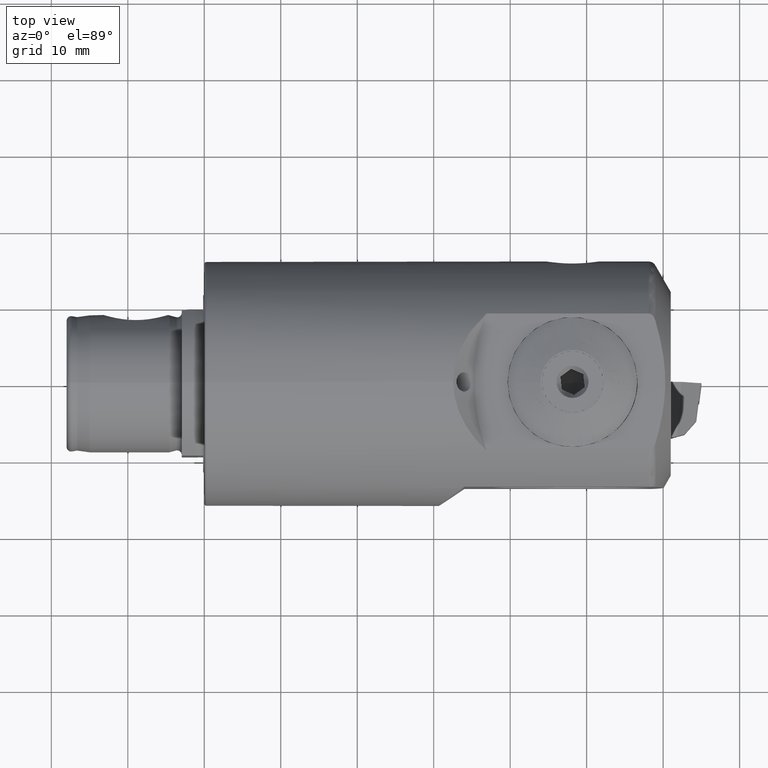
[diagram: clean part render]
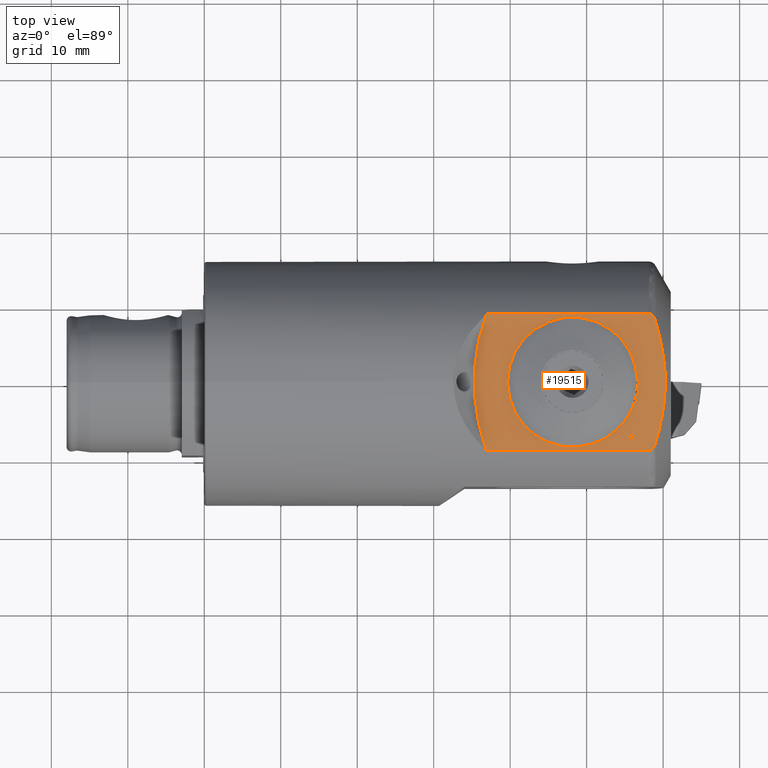
[diagram: same view with one face highlighted and labeled with its STEP entity id]
A machine part, top view. The second image highlights one B-rep face of the part: STEP entity #19515.
In plain terms, the highlighted planar face has unit normal (0, 0, 1).
Its self-contained STEP definition (entity closure, byte-faithful):
#205 = VERTEX_POINT ( 'NONE', #18856 ) ;
#305 = CARTESIAN_POINT ( 'NONE',  ( 56.57476505708877600, -1.128420902348066700, 13.24999999999999800 ) ) ;
#336 = EDGE_CURVE ( 'NONE', #26315, #14768, #8229, .T. ) ;
#570 = CARTESIAN_POINT ( 'NONE',  ( 58.97927405783630700, -8.042853971072718300, 13.25000000000000000 ) ) ;
#625 = ORIENTED_EDGE ( 'NONE', *, *, #7730, .T. ) ;
#1258 = CARTESIAN_POINT ( 'NONE',  ( 58.22063395707630900, -2.975706924846885500, 13.25000000000000000 ) ) ;
#1270 = VERTEX_POINT ( 'NONE', #15582 ) ;
#1315 = VERTEX_POINT ( 'NONE', #12637 ) ;
#1397 = ORIENTED_EDGE ( 'NONE', *, *, #22189, .F. ) ;
#1426 = EDGE_CURVE ( 'NONE', #26756, #25260, #10574, .T. ) ;
#1601 = ORIENTED_EDGE ( 'NONE', *, *, #23162, .F. ) ;
#1808 = CARTESIAN_POINT ( 'NONE',  ( 58.61355914048837000, 8.735098020652939600, 13.24999999999999800 ) ) ;
#2099 = CARTESIAN_POINT ( 'NONE',  ( 58.22063395707630900, -2.975706924846885500, 13.24999999998293500 ) ) ;
#2152 = CARTESIAN_POINT ( 'NONE',  ( 36.89585076262646600, -8.968695557326045200, 13.25000000000000200 ) ) ;
#2231 = VERTEX_POINT ( 'NONE', #305 ) ;
#2238 = ORIENTED_EDGE ( 'NONE', *, *, #25606, .F. ) ;
#2384 = VERTEX_POINT ( 'NONE', #21690 ) ;
#2434 = CARTESIAN_POINT ( 'NONE',  ( 59.69476924248552800, -5.425145935517456100, 13.25000000000000000 ) ) ;
#2494 = LINE ( 'NONE', #10470, #19454 ) ;
#2515 = EDGE_CURVE ( 'NONE', #32321, #26123, #28087, .T. ) ;
#2644 = CIRCLE ( 'NONE', #21643, 8.500000000000007100 ) ;
#2703 = FACE_OUTER_BOUND ( 'NONE', #26885, .T. ) ;
#2826 = LINE ( 'NONE', #8372, #8910 ) ;
#2888 = LINE ( 'NONE', #21917, #26833 ) ;
#3520 = VERTEX_POINT ( 'NONE', #14369 ) ;
#3526 = DIRECTION ( 'NONE',  ( 0.9548645447466426200, -0.2970415815770355800, -8.667880835620725100E-016 ) ) ;
#3599 = CARTESIAN_POINT ( 'NONE',  ( 56.22052850339331800, -2.667689951234264900, 13.24999999998293600 ) ) ;
#3714 = VECTOR ( 'NONE', #32592, 1000.000000000000000 ) ;
#3787 = DIRECTION ( 'NONE',  ( -0.9886517447379137300, 0.1502255891207582800, 1.733576167124138300E-015 ) ) ;
#3840 = CARTESIAN_POINT ( 'NONE',  ( 58.55337715811622000, -1.429070924057285200, 13.25000000000000000 ) ) ;
#3854 = CARTESIAN_POINT ( 'NONE',  ( 48.14999999999999900, 0.0000000000000000000, 13.24999999999999800 ) ) ;
#3906 = CARTESIAN_POINT ( 'NONE',  ( 58.55337715811622000, -1.429070924057284800, 13.24999999998293300 ) ) ;
#4055 = LINE ( 'NONE', #22601, #29485 ) ;
#4122 = EDGE_CURVE ( 'NONE', #10201, #7003, #2494, .T. ) ;
#4428 = CARTESIAN_POINT ( 'NONE',  ( 58.91489447909683000, 8.257750931416652000, 13.25000000000000000 ) ) ;
#4521 = VECTOR ( 'NONE', #18455, 1000.000000000000100 ) ;
#4613 = CARTESIAN_POINT ( 'NONE',  ( 48.14999999999999900, 0.0000000000000000000, 13.24999999999999800 ) ) ;
#4925 = CARTESIAN_POINT ( 'NONE',  ( 48.14999999999999900, 0.0000000000000000000, 13.24999999999999800 ) ) ;
#4942 = CARTESIAN_POINT ( 'NONE',  ( 59.37080710250039300, 6.735929278182517500, 13.25000000000000000 ) ) ;
#5043 = CARTESIAN_POINT ( 'NONE',  ( 56.63582128123550800, -7.762946424066758900, 13.25000000000000000 ) ) ;
#5057 = CARTESIAN_POINT ( 'NONE',  ( 58.97927405783630700, -8.042853971072718300, 13.25000000000000000 ) ) ;
#5487 = ORIENTED_EDGE ( 'NONE', *, *, #27555, .T. ) ;
#5502 = LINE ( 'NONE', #5930, #9914 ) ;
#5636 = ORIENTED_EDGE ( 'NONE', *, *, #23352, .F. ) ;
#5668 = PLANE ( 'NONE',  #17371 ) ;
#5747 = DIRECTION ( 'NONE',  ( 0.4371157666509312100, 0.8994052515663718500, 0.0000000000000000000 ) ) ;
#5764 = EDGE_CURVE ( 'NONE', #26123, #20217, #9721, .T. ) ;
#5930 = CARTESIAN_POINT ( 'NONE',  ( 56.71200193272947100, -6.079853855475238200, 13.24999999998293600 ) ) ;
#5984 = CARTESIAN_POINT ( 'NONE',  ( 48.14999999999999900, 0.0000000000000000000, 13.24999999999999800 ) ) ;
#6038 = CARTESIAN_POINT ( 'NONE',  ( 56.64867636752925500, -0.1499999999999873900, 13.24999999998293500 ) ) ;
#6143 = CARTESIAN_POINT ( 'NONE',  ( 56.43045714945688500, -7.981637012293179900, 13.25000000000000000 ) ) ;
#6198 = ORIENTED_EDGE ( 'NONE', *, *, #27885, .F. ) ;
#6218 = EDGE_CURVE ( 'NONE', #7010, #3520, #12865, .T. ) ;
#6339 = VERTEX_POINT ( 'NONE', #29788 ) ;
#6407 = EDGE_CURVE ( 'NONE', #2384, #19720, #29837, .T. ) ;
#6437 = CARTESIAN_POINT ( 'NONE',  ( 39.64999999999999100, 1.040949779275251100E-015, 13.24999999999999800 ) ) ;
#6465 = DIRECTION ( 'NONE',  ( 1.000000000000000000, 0.0000000000000000000, 0.0000000000000000000 ) ) ;
#7003 = VERTEX_POINT ( 'NONE', #24742 ) ;
#7010 = VERTEX_POINT ( 'NONE', #24808 ) ;
#7092 = EDGE_CURVE ( 'NONE', #24839, #22602, #29302, .T. ) ;
#7204 = DIRECTION ( 'NONE',  ( 1.000000000000000000, 0.0000000000000000000, 0.0000000000000000000 ) ) ;
#7312 = DIRECTION ( 'NONE',  ( -0.9548645447466418400, 0.2970415815770383600, 8.667880835620717200E-016 ) ) ;
#7348 = VERTEX_POINT ( 'NONE', #570 ) ;
#7414 = VECTOR ( 'NONE', #16786, 999.9999999999998900 ) ;
#7418 = VERTEX_POINT ( 'NONE', #32836 ) ;
#7516 = DIRECTION ( 'NONE',  ( 1.000000000000000000, 1.776356839400249700E-015, 0.0000000000000000000 ) ) ;
#7532 = CARTESIAN_POINT ( 'NONE',  ( 59.69736859934455000, 5.415074675953976100, 13.25000000000000400 ) ) ;
#7730 = EDGE_CURVE ( 'NONE', #7003, #24839, #18342, .T. ) ;
#7743 = VECTOR ( 'NONE', #27583, 1000.000000000000000 ) ;
#7763 = B_SPLINE_CURVE_WITH_KNOTS ( 'NONE', 3,
 ( #11259, #21569, #24084, #8805, #26563, #11371, #29054, #13930, #31598, #16548 ),
 .UNSPECIFIED., .F., .F.,
 ( 4, 2, 2, 2, 4 ),
 ( 0.009242739852112302400, 0.009580314178392015900, 0.009917888504671731200, 0.01025546283095144500, 0.01059303715723115800 ),
 .UNSPECIFIED. ) ;
#7778 = DIRECTION ( 'NONE',  ( 0.0000000000000000000, 0.0000000000000000000, -1.000000000000000000 ) ) ;
#7794 = CARTESIAN_POINT ( 'NONE',  ( 54.24258638064724600, -5.927089605729934300, 13.24999999998293800 ) ) ;
#8050 = ORIENTED_EDGE ( 'NONE', *, *, #29359, .F. ) ;
#8111 = CARTESIAN_POINT ( 'NONE',  ( 54.44795051242585500, -5.708399017503504400, 13.24999999999999800 ) ) ;
#8118 = DIRECTION ( 'NONE',  ( -1.000000000000000000, -0.0000000000000000000, -0.0000000000000000000 ) ) ;
#8229 = LINE ( 'NONE', #16863, #7414 ) ;
#8260 = DIRECTION ( 'NONE',  ( 1.000000000000000000, 0.0000000000000000000, 0.0000000000000000000 ) ) ;
#8316 = DIRECTION ( 'NONE',  ( -0.8235325976284260100, 0.5672689491267586300, 0.0000000000000000000 ) ) ;
#8372 = CARTESIAN_POINT ( 'NONE',  ( 55.06384668298567000, -4.944565101621003900, 13.24999999998293800 ) ) ;
#8549 = DIRECTION ( 'NONE',  ( 1.000000000000000000, 8.881784197001248400E-016, 0.0000000000000000000 ) ) ;
#8590 = CARTESIAN_POINT ( 'NONE',  ( 59.65000000000000600, 0.1500000000000077700, 13.25000000000000000 ) ) ;
#8805 = CARTESIAN_POINT ( 'NONE',  ( 58.81170642551489900, -8.458194726264432400, 13.24999999999999800 ) ) ;
#8910 = VECTOR ( 'NONE', #10938, 1000.000000000000100 ) ;
#9028 = EDGE_CURVE ( 'NONE', #14768, #2231, #9834, .T. ) ;
#9159 = CARTESIAN_POINT ( 'NONE',  ( 56.64867636752924800, 0.1500000000000147300, 13.24999999999999800 ) ) ;
#9520 = CARTESIAN_POINT ( 'NONE',  ( 58.22708233130412500, 8.968695557326047000, 13.24999999999999800 ) ) ;
#9721 = LINE ( 'NONE', #23299, #23301 ) ;
#9834 = LINE ( 'NONE', #3906, #16673 ) ;
#9873 = DIRECTION ( 'NONE',  ( 0.2970415815770338600, 0.9548645447466431700, 0.0000000000000000000 ) ) ;
#9914 = VECTOR ( 'NONE', #13625, 999.9999999999998900 ) ;
#10117 = CARTESIAN_POINT ( 'NONE',  ( 60.12785070880179500, 2.725631233412522600, 13.24999999999999800 ) ) ;
#10201 = VERTEX_POINT ( 'NONE', #28065 ) ;
#10297 = EDGE_CURVE ( 'NONE', #1315, #30705, #30725, .T. ) ;
#10362 = EDGE_CURVE ( 'NONE', #7010, #29669, #16598, .T. ) ;
#10470 = CARTESIAN_POINT ( 'NONE',  ( 0.5514955217248775900, 8.968695557326048700, 13.25000000000000000 ) ) ;
#10574 = LINE ( 'NONE', #32547, #3714 ) ;
#10658 = DIRECTION ( 'NONE',  ( 0.6845471059287063800, 0.7289686274213949000, 0.0000000000000000000 ) ) ;
#10856 = CIRCLE ( 'NONE', #28168, 8.500000000000007100 ) ;
#10882 = CARTESIAN_POINT ( 'NONE',  ( 56.88218261746750000, -5.832794076186709200, 13.24999999998293600 ) ) ;
#10902 = CARTESIAN_POINT ( 'NONE',  ( 57.52818777644924400, -4.724626337569787900, 13.24999999998293500 ) ) ;
#10938 = DIRECTION ( 'NONE',  ( 0.8235325976284260100, -0.5672689491267586300, -8.667880835620691500E-016 ) ) ;
#10965 = VERTEX_POINT ( 'NONE', #1258 ) ;
#11138 = VERTEX_POINT ( 'NONE', #28477 ) ;
#11247 = CARTESIAN_POINT ( 'NONE',  ( 56.43045714945689200, -7.981637012293179900, 13.24999999998293600 ) ) ;
#11259 = CARTESIAN_POINT ( 'NONE',  ( 58.97927405783630700, -8.042853971072718300, 13.25000000000000000 ) ) ;
#11368 = EDGE_CURVE ( 'NONE', #3520, #10965, #4055, .T. ) ;
#11371 = CARTESIAN_POINT ( 'NONE',  ( 58.61412825264832800, -8.734411462970941300, 13.25000000000000400 ) ) ;
#11401 = CIRCLE ( 'NONE', #16679, 8.500000000000007100 ) ;
#11445 = ORIENTED_EDGE ( 'NONE', *, *, #11368, .F. ) ;
#12177 = VERTEX_POINT ( 'NONE', #29100 ) ;
#12452 = CARTESIAN_POINT ( 'NONE',  ( 48.14999999999999900, 0.0000000000000000000, 13.24999999999999800 ) ) ;
#12495 = VERTEX_POINT ( 'NONE', #18148 ) ;
#12525 = CARTESIAN_POINT ( 'NONE',  ( 57.52818777644924400, -4.724626337569787900, 13.25000000000000000 ) ) ;
#12605 = ORIENTED_EDGE ( 'NONE', *, *, #10297, .F. ) ;
#12626 = EDGE_CURVE ( 'NONE', #6339, #12177, #2826, .T. ) ;
#12637 = CARTESIAN_POINT ( 'NONE',  ( 55.72818679132116400, -3.849816223645699900, 13.24999999998293600 ) ) ;
#12659 = VECTOR ( 'NONE', #25484, 1000.000000000000100 ) ;
#12677 = CARTESIAN_POINT ( 'NONE',  ( 60.24073890327439800, 1.358965043959549300, 13.25000000000000000 ) ) ;
#12732 = ORIENTED_EDGE ( 'NONE', *, *, #31499, .F. ) ;
#12750 = VECTOR ( 'NONE', #7312, 1000.000000000000100 ) ;
#12865 = LINE ( 'NONE', #3599, #27135 ) ;
#12873 = LINE ( 'NONE', #10902, #19740 ) ;
#13517 = EDGE_CURVE ( 'NONE', #30907, #2231, #10856, .T. ) ;
#13625 = DIRECTION ( 'NONE',  ( 0.5672689491267607400, 0.8235325976284245700, 0.0000000000000000000 ) ) ;
#13640 = ORIENTED_EDGE ( 'NONE', *, *, #2515, .F. ) ;
#13930 = CARTESIAN_POINT ( 'NONE',  ( 58.33970931489928100, -8.931748016869034900, 13.25000000000000400 ) ) ;
#13963 = EDGE_LOOP ( 'NONE', ( #13640, #28095, #22486, #24149, #21551, #8050, #29253, #24686, #23285, #23821, #5636, #30625, #20794, #11445, #25148, #15406, #2238, #31654, #12605, #32766, #6198, #18469, #17001, #5487, #19905 ) ) ;
#14306 = DIRECTION ( 'NONE',  ( 0.0000000000000000000, 1.000000000000000000, 0.0000000000000000000 ) ) ;
#14369 = CARTESIAN_POINT ( 'NONE',  ( 58.13152148260319800, -3.262166288270874800, 13.25000000000000000 ) ) ;
#14545 = LINE ( 'NONE', #20094, #7743 ) ;
#14647 = LINE ( 'NONE', #10882, #19892 ) ;
#14674 = VECTOR ( 'NONE', #10658, 1000.000000000000000 ) ;
#14768 = VERTEX_POINT ( 'NONE', #3840 ) ;
#15037 = DIRECTION ( 'NONE',  ( 1.000000000000000000, 8.881784197001248400E-016, 0.0000000000000000000 ) ) ;
#15264 = CARTESIAN_POINT ( 'NONE',  ( 60.27863023602398600, 0.3230051561621997100, 13.25000000000000000 ) ) ;
#15406 = ORIENTED_EDGE ( 'NONE', *, *, #10362, .T. ) ;
#15582 = CARTESIAN_POINT ( 'NONE',  ( 56.30964097786642200, -2.381230587810266200, 13.24999999999999800 ) ) ;
#15907 = EDGE_CURVE ( 'NONE', #30907, #11138, #14545, .T. ) ;
#15935 = AXIS2_PLACEMENT_3D ( 'NONE', #4613, #22526, #7204 ) ;
#16401 = B_SPLINE_CURVE_WITH_KNOTS ( 'NONE', 3,
 ( #27245, #9520, #32257, #17260, #1808, #19831, #4428, #22356 ),
 .UNSPECIFIED., .F., .F.,
 ( 4, 2, 2, 4 ),
 ( 0.005270350267607852600, 0.005609012169638859400, 0.005947674071669866200, 0.006624997875731879900 ),
 .UNSPECIFIED. ) ;
#16428 = FACE_BOUND ( 'NONE', #13963, .T. ) ;
#16548 = CARTESIAN_POINT ( 'NONE',  ( 58.11324865405185800, -8.968695557326061200, 13.25000000000000000 ) ) ;
#16598 = CIRCLE ( 'NONE', #29041, 8.500000000000007100 ) ;
#16673 = VECTOR ( 'NONE', #3787, 1000.000000000000100 ) ;
#16679 = AXIS2_PLACEMENT_3D ( 'NONE', #12452, #30107, #15037 ) ;
#16786 = DIRECTION ( 'NONE',  ( 0.1502255891207741900, 0.9886517447379115100, 0.0000000000000000000 ) ) ;
#16863 = CARTESIAN_POINT ( 'NONE',  ( 58.50830948137998900, -1.725666447478658900, 13.24999999998293300 ) ) ;
#17001 = ORIENTED_EDGE ( 'NONE', *, *, #12626, .F. ) ;
#17186 = EDGE_CURVE ( 'NONE', #30705, #7418, #12873, .T. ) ;
#17260 = CARTESIAN_POINT ( 'NONE',  ( 58.53195823407967400, 8.814268259986233600, 13.24999999999999600 ) ) ;
#17371 = AXIS2_PLACEMENT_3D ( 'NONE', #25914, #23565, #8260 ) ;
#17860 = CARTESIAN_POINT ( 'NONE',  ( 60.14937919361444300, -2.755759951044886200, 13.25000000000000000 ) ) ;
#18123 = DIRECTION ( 'NONE',  ( 0.7289686274214093300, -0.6845471059286910600, -5.779861449159153700E-016 ) ) ;
#18148 = CARTESIAN_POINT ( 'NONE',  ( 56.88218261746750000, -5.832794076186711000, 13.25000000000000000 ) ) ;
#18342 = CIRCLE ( 'NONE', #18977, 25.99999999999999600 ) ;
#18348 = DIRECTION ( 'NONE',  ( -0.8994052515663689700, 0.4371157666509370400, 8.667880835620734900E-016 ) ) ;
#18455 = DIRECTION ( 'NONE',  ( 0.8994052515663698600, -0.4371157666509353200, -8.667880835620710300E-016 ) ) ;
#18469 = ORIENTED_EDGE ( 'NONE', *, *, #21246, .F. ) ;
#18544 = DIRECTION ( 'NONE',  ( 1.000000000000000000, 0.0000000000000000000, 0.0000000000000000000 ) ) ;
#18555 = DIRECTION ( 'NONE',  ( 1.000000000000000000, 0.0000000000000000000, 0.0000000000000000000 ) ) ;
#18632 = LINE ( 'NONE', #23323, #24509 ) ;
#18856 = CARTESIAN_POINT ( 'NONE',  ( 55.23402736772369100, -4.697505322332466100, 13.24999999999999800 ) ) ;
#18915 = CARTESIAN_POINT ( 'NONE',  ( 0.5514955217248775900, -8.968695557326048700, 13.25000000000000000 ) ) ;
#18977 = AXIS2_PLACEMENT_3D ( 'NONE', #26527, #26483, #26444 ) ;
#19454 = VECTOR ( 'NONE', #8118, 1000.000000000000000 ) ;
#19515 = ADVANCED_FACE ( 'NONE', ( #2703, #16428 ), #5668, .T. ) ;
#19670 = VERTEX_POINT ( 'NONE', #26565 ) ;
#19720 = VERTEX_POINT ( 'NONE', #6437 ) ;
#19740 = VECTOR ( 'NONE', #5747, 1000.000000000000000 ) ;
#19782 = DIRECTION ( 'NONE',  ( 0.0000000000000000000, 0.0000000000000000000, -1.000000000000000000 ) ) ;
#19831 = CARTESIAN_POINT ( 'NONE',  ( 58.82430977191835800, 8.467163348899845200, 13.25000000000000400 ) ) ;
#19892 = VECTOR ( 'NONE', #8316, 1000.000000000000100 ) ;
#19896 = CARTESIAN_POINT ( 'NONE',  ( 48.14999999999999900, 0.0000000000000000000, 13.24999999999999800 ) ) ;
#19905 = ORIENTED_EDGE ( 'NONE', *, *, #5764, .F. ) ;
#19916 = CIRCLE ( 'NONE', #26553, 8.500000000000007100 ) ;
#19980 = EDGE_CURVE ( 'NONE', #10965, #1270, #32850, .T. ) ;
#20094 = CARTESIAN_POINT ( 'NONE',  ( 56.64867636752925500, -0.1499999999999873900, 13.24999999998293500 ) ) ;
#20217 = VERTEX_POINT ( 'NONE', #8111 ) ;
#20447 = CARTESIAN_POINT ( 'NONE',  ( 59.36946008406784600, -6.740425582326594200, 13.25000000000000400 ) ) ;
#20794 = ORIENTED_EDGE ( 'NONE', *, *, #19980, .F. ) ;
#20872 = EDGE_CURVE ( 'NONE', #27651, #1270, #2644, .T. ) ;
#21065 = LINE ( 'NONE', #7794, #21825 ) ;
#21093 = CARTESIAN_POINT ( 'NONE',  ( 58.50830948137998900, -1.725666447478658700, 13.25000000000000000 ) ) ;
#21246 = EDGE_CURVE ( 'NONE', #12177, #12495, #5502, .T. ) ;
#21551 = ORIENTED_EDGE ( 'NONE', *, *, #1426, .F. ) ;
#21569 = CARTESIAN_POINT ( 'NONE',  ( 58.94694761640870000, -8.150758591412756700, 13.24999999999999800 ) ) ;
#21643 = AXIS2_PLACEMENT_3D ( 'NONE', #3854, #21798, #6465 ) ;
#21690 = CARTESIAN_POINT ( 'NONE',  ( 54.24258638064724600, -5.927089605729936000, 13.24999999998293800 ) ) ;
#21798 = DIRECTION ( 'NONE',  ( 0.0000000000000000000, 0.0000000000000000000, -1.000000000000000000 ) ) ;
#21825 = VECTOR ( 'NONE', #18123, 1000.000000000000000 ) ;
#21917 = CARTESIAN_POINT ( 'NONE',  ( 59.65000000000000600, -0.1499999999999912800, 13.24999999998293300 ) ) ;
#22077 = EDGE_CURVE ( 'NONE', #19720, #25260, #26149, .T. ) ;
#22189 = EDGE_CURVE ( 'NONE', #19670, #7348, #27927, .T. ) ;
#22356 = CARTESIAN_POINT ( 'NONE',  ( 58.97927405783630700, 8.042853971072721800, 13.25000000000000400 ) ) ;
#22486 = ORIENTED_EDGE ( 'NONE', *, *, #6407, .T. ) ;
#22526 = DIRECTION ( 'NONE',  ( 0.0000000000000000000, 0.0000000000000000000, -1.000000000000000000 ) ) ;
#22601 = CARTESIAN_POINT ( 'NONE',  ( 58.13152148260319800, -3.262166288270874400, 13.24999999998293500 ) ) ;
#22602 = VERTEX_POINT ( 'NONE', #23050 ) ;
#22702 = VECTOR ( 'NONE', #18555, 1000.000000000000000 ) ;
#22829 = DIRECTION ( 'NONE',  ( 0.0000000000000000000, 0.0000000000000000000, -1.000000000000000000 ) ) ;
#22841 = CARTESIAN_POINT ( 'NONE',  ( 58.97927405783630700, 8.042853971072721800, 13.25000000000000400 ) ) ;
#22981 = ORIENTED_EDGE ( 'NONE', *, *, #4122, .T. ) ;
#23004 = CARTESIAN_POINT ( 'NONE',  ( 56.52969738035255900, -1.425016425769442700, 13.24999999998293600 ) ) ;
#23050 = CARTESIAN_POINT ( 'NONE',  ( 58.11324865405185800, -8.968695557326061200, 13.25000000000000000 ) ) ;
#23075 = DIRECTION ( 'NONE',  ( -0.7289686274214092200, 0.6845471059286911700, 5.779861449159152700E-016 ) ) ;
#23091 = CARTESIAN_POINT ( 'NONE',  ( 48.14999999999999900, 0.0000000000000000000, 13.24999999999999800 ) ) ;
#23162 = EDGE_CURVE ( 'NONE', #10201, #19670, #16401, .T. ) ;
#23285 = ORIENTED_EDGE ( 'NONE', *, *, #9028, .F. ) ;
#23299 = CARTESIAN_POINT ( 'NONE',  ( 56.63582128123550800, -7.762946424066758100, 13.24999999998293600 ) ) ;
#23301 = VECTOR ( 'NONE', #23075, 1000.000000000000000 ) ;
#23323 = CARTESIAN_POINT ( 'NONE',  ( 57.65932250644452500, -4.454804762099880300, 13.24999999998293500 ) ) ;
#23352 = EDGE_CURVE ( 'NONE', #27651, #26315, #32768, .T. ) ;
#23565 = DIRECTION ( 'NONE',  ( 0.0000000000000000000, -0.0000000000000000000, 1.000000000000000000 ) ) ;
#23821 = ORIENTED_EDGE ( 'NONE', *, *, #336, .F. ) ;
#23849 = DIRECTION ( 'NONE',  ( 0.0000000000000000000, 0.0000000000000000000, -1.000000000000000000 ) ) ;
#24084 = CARTESIAN_POINT ( 'NONE',  ( 58.90792107489187400, -8.255812791629219700, 13.25000000000000400 ) ) ;
#24149 = ORIENTED_EDGE ( 'NONE', *, *, #22077, .T. ) ;
#24509 = VECTOR ( 'NONE', #18348, 1000.000000000000200 ) ;
#24686 = ORIENTED_EDGE ( 'NONE', *, *, #13517, .T. ) ;
#24742 = CARTESIAN_POINT ( 'NONE',  ( 36.89585076262646600, 8.968695557326045200, 13.25000000000000200 ) ) ;
#24808 = CARTESIAN_POINT ( 'NONE',  ( 56.22052850339331800, -2.667689951234262700, 13.24999999998293500 ) ) ;
#24839 = VERTEX_POINT ( 'NONE', #2152 ) ;
#25148 = ORIENTED_EDGE ( 'NONE', *, *, #6218, .F. ) ;
#25260 = VERTEX_POINT ( 'NONE', #9159 ) ;
#25335 = CARTESIAN_POINT ( 'NONE',  ( 60.03887236242328400, 3.401988980372967900, 13.25000000000000200 ) ) ;
#25484 = DIRECTION ( 'NONE',  ( 0.9886517447379136200, -0.1502255891207592300, -1.733576167124144200E-015 ) ) ;
#25558 = DIRECTION ( 'NONE',  ( 1.000000000000000000, 0.0000000000000000000, 0.0000000000000000000 ) ) ;
#25606 = EDGE_CURVE ( 'NONE', #7418, #29669, #18632, .T. ) ;
#25914 = CARTESIAN_POINT ( 'NONE',  ( 61.30000000000000400, 0.0000000000000000000, 13.25000000000000000 ) ) ;
#26093 = EDGE_CURVE ( 'NONE', #1315, #205, #19916, .T. ) ;
#26123 = VERTEX_POINT ( 'NONE', #5043 ) ;
#26149 = CIRCLE ( 'NONE', #15935, 8.500000000000007100 ) ;
#26315 = VERTEX_POINT ( 'NONE', #21093 ) ;
#26444 = DIRECTION ( 'NONE',  ( 1.000000000000000000, 0.0000000000000000000, 0.0000000000000000000 ) ) ;
#26483 = DIRECTION ( 'NONE',  ( -0.0000000000000000000, -0.0000000000000000000, 1.000000000000000000 ) ) ;
#26527 = CARTESIAN_POINT ( 'NONE',  ( 61.30000000000000400, 0.0000000000000000000, 13.25000000000000200 ) ) ;
#26553 = AXIS2_PLACEMENT_3D ( 'NONE', #4925, #22829, #7516 ) ;
#26563 = CARTESIAN_POINT ( 'NONE',  ( 58.75379900985498700, -8.556769098181789000, 13.25000000000000000 ) ) ;
#26565 = CARTESIAN_POINT ( 'NONE',  ( 58.97927405783630700, 8.042853971072721800, 13.25000000000000400 ) ) ;
#26756 = VERTEX_POINT ( 'NONE', #8590 ) ;
#26833 = VECTOR ( 'NONE', #14306, 1000.000000000000000 ) ;
#26885 = EDGE_LOOP ( 'NONE', ( #32467, #12732, #1397, #1601, #22981, #625 ) ) ;
#27094 = EDGE_CURVE ( 'NONE', #2384, #32321, #21065, .T. ) ;
#27135 = VECTOR ( 'NONE', #3526, 1000.000000000000100 ) ;
#27245 = CARTESIAN_POINT ( 'NONE',  ( 58.11324865405197200, 8.968695557326066500, 13.25000000000000000 ) ) ;
#27555 = EDGE_CURVE ( 'NONE', #6339, #20217, #11401, .T. ) ;
#27583 = DIRECTION ( 'NONE',  ( 1.000000000000000000, -1.300468826060811900E-015, -5.779861449159163600E-016 ) ) ;
#27651 = VERTEX_POINT ( 'NONE', #27712 ) ;
#27712 = CARTESIAN_POINT ( 'NONE',  ( 56.52969738035255900, -1.425016425769439800, 13.24999999998293500 ) ) ;
#27828 = CARTESIAN_POINT ( 'NONE',  ( 60.21793234246697300, 1.701792672700067200, 13.25000000000000200 ) ) ;
#27885 = EDGE_CURVE ( 'NONE', #12495, #205, #14647, .T. ) ;
#27927 = B_SPLINE_CURVE_WITH_KNOTS ( 'NONE', 3,
 ( #22841, #4942, #7532, #25335, #10117, #27828, #12677, #30336, #15264, #32839, #17860, #2434, #20447, #5057 ),
 .UNSPECIFIED., .F., .F.,
 ( 4, 2, 2, 2, 2, 2, 4 ),
 ( 0.04572787913388939200, 0.04981772336407025400, 0.05186264547916068900, 0.05288510653670590300, 0.05390756759425111700, 0.05799741182443198000, 0.06208725605461283500 ),
 .UNSPECIFIED. ) ;
#28065 = CARTESIAN_POINT ( 'NONE',  ( 58.11324865405197200, 8.968695557326066500, 13.25000000000000000 ) ) ;
#28087 = LINE ( 'NONE', #11247, #14674 ) ;
#28089 = CARTESIAN_POINT ( 'NONE',  ( 55.85932152131643800, -3.579994648175784300, 13.24999999999999800 ) ) ;
#28095 = ORIENTED_EDGE ( 'NONE', *, *, #27094, .F. ) ;
#28168 = AXIS2_PLACEMENT_3D ( 'NONE', #23091, #7778, #25558 ) ;
#28477 = CARTESIAN_POINT ( 'NONE',  ( 59.65000000000000600, -0.1499999999999912800, 13.25000000000000000 ) ) ;
#29041 = AXIS2_PLACEMENT_3D ( 'NONE', #5984, #23849, #8549 ) ;
#29054 = CARTESIAN_POINT ( 'NONE',  ( 58.53097851139074200, -8.814797852089647300, 13.25000000000000000 ) ) ;
#29100 = CARTESIAN_POINT ( 'NONE',  ( 56.71200193272947100, -6.079853855475237300, 13.25000000000000000 ) ) ;
#29253 = ORIENTED_EDGE ( 'NONE', *, *, #15907, .F. ) ;
#29302 = LINE ( 'NONE', #18915, #22702 ) ;
#29359 = EDGE_CURVE ( 'NONE', #11138, #26756, #2888, .T. ) ;
#29485 = VECTOR ( 'NONE', #9873, 1000.000000000000100 ) ;
#29669 = VERTEX_POINT ( 'NONE', #28089 ) ;
#29788 = CARTESIAN_POINT ( 'NONE',  ( 55.06384668298567000, -4.944565101621003900, 13.24999999998293600 ) ) ;
#29837 = CIRCLE ( 'NONE', #31688, 8.500000000000007100 ) ;
#30107 = DIRECTION ( 'NONE',  ( 0.0000000000000000000, 0.0000000000000000000, -1.000000000000000000 ) ) ;
#30336 = CARTESIAN_POINT ( 'NONE',  ( 60.27110430510180100, 0.6700406731299460800, 13.24999999999999800 ) ) ;
#30625 = ORIENTED_EDGE ( 'NONE', *, *, #20872, .T. ) ;
#30705 = VERTEX_POINT ( 'NONE', #12525 ) ;
#30725 = LINE ( 'NONE', #30921, #4521 ) ;
#30907 = VERTEX_POINT ( 'NONE', #6038 ) ;
#30921 = CARTESIAN_POINT ( 'NONE',  ( 55.72818679132116400, -3.849816223645699900, 13.24999999998293600 ) ) ;
#31499 = EDGE_CURVE ( 'NONE', #7348, #22602, #7763, .T. ) ;
#31598 = CARTESIAN_POINT ( 'NONE',  ( 58.22577376815494400, -8.968695557326059400, 13.25000000000000000 ) ) ;
#31654 = ORIENTED_EDGE ( 'NONE', *, *, #17186, .F. ) ;
#31688 = AXIS2_PLACEMENT_3D ( 'NONE', #19896, #19782, #18544 ) ;
#32257 = CARTESIAN_POINT ( 'NONE',  ( 58.33806102066225200, 8.932686162296876700, 13.25000000000000400 ) ) ;
#32321 = VERTEX_POINT ( 'NONE', #6143 ) ;
#32467 = ORIENTED_EDGE ( 'NONE', *, *, #7092, .T. ) ;
#32547 = CARTESIAN_POINT ( 'NONE',  ( 59.65000000000000600, 0.1500000000000077700, 13.24999999998293300 ) ) ;
#32592 = DIRECTION ( 'NONE',  ( -1.000000000000000000, 1.733958434747749100E-015, 5.779861449159163600E-016 ) ) ;
#32766 = ORIENTED_EDGE ( 'NONE', *, *, #26093, .T. ) ;
#32768 = LINE ( 'NONE', #23004, #12659 ) ;
#32836 = CARTESIAN_POINT ( 'NONE',  ( 57.65932250644452500, -4.454804762099882100, 13.25000000000000000 ) ) ;
#32839 = CARTESIAN_POINT ( 'NONE',  ( 60.27698782044277000, -1.401318417476044200, 13.25000000000000400 ) ) ;
#32850 = LINE ( 'NONE', #2099, #12750 ) ;